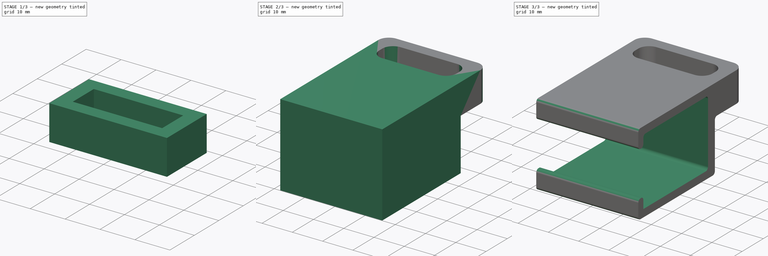
[diagram: build sequence overview — one tinted view per stage of 3, left to right]
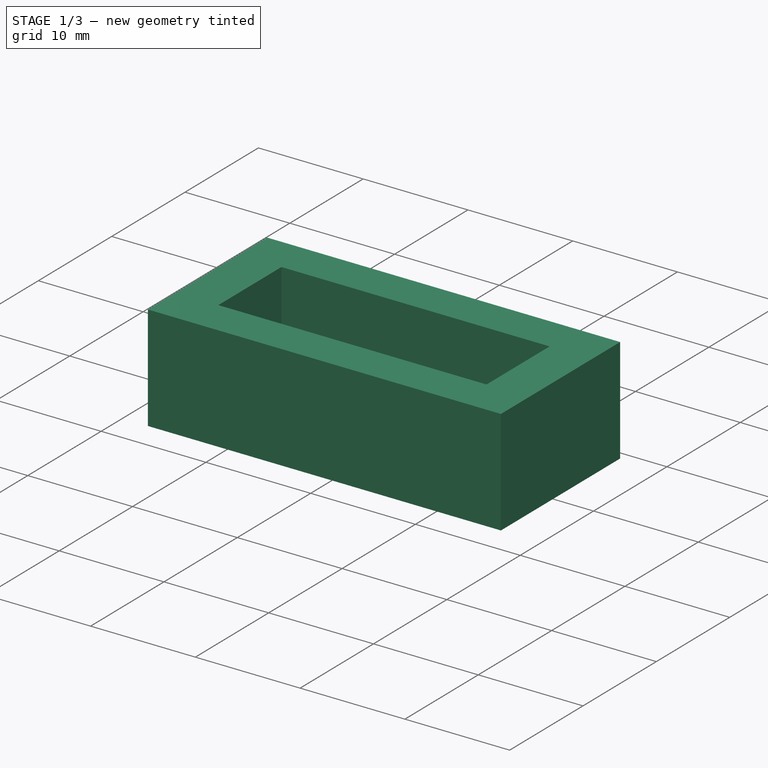
[diagram: stage 1 of 3 — iso view after this stage's code; geometry added in this stage tinted green]
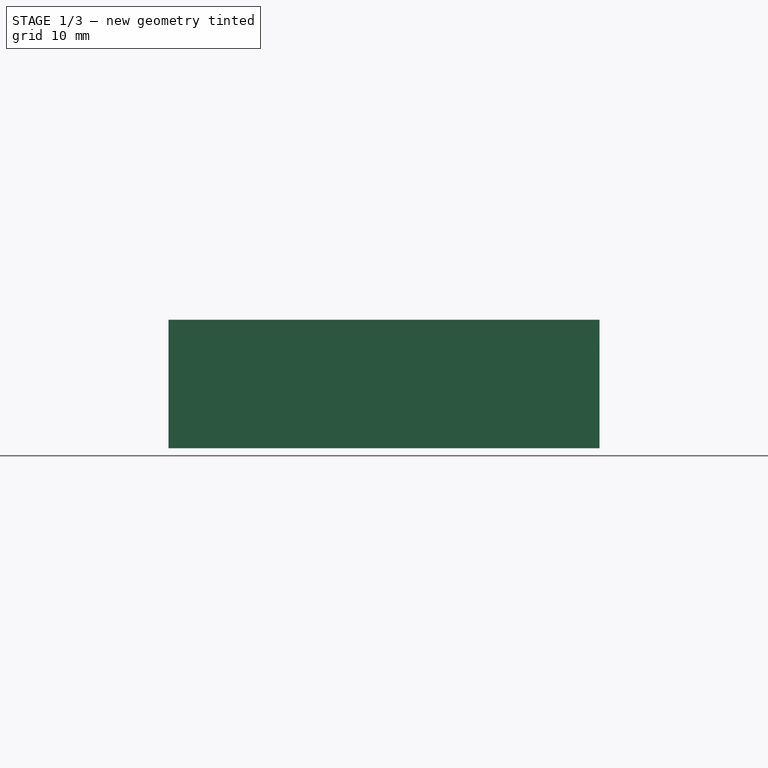
[diagram: stage 1 of 3 — front view after this stage's code; geometry added in this stage tinted green]
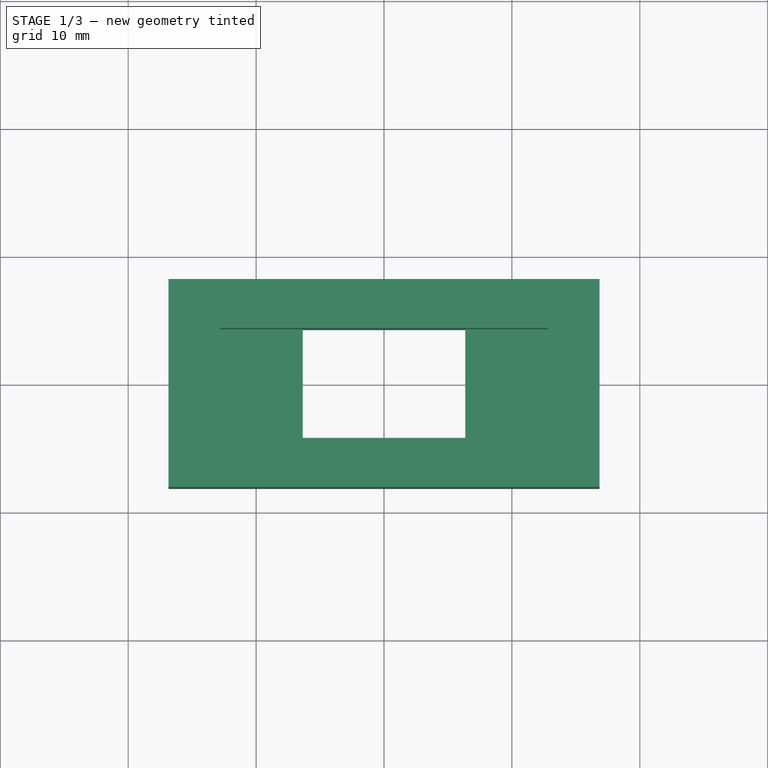
[diagram: stage 1 of 3 — top view after this stage's code; geometry added in this stage tinted green]
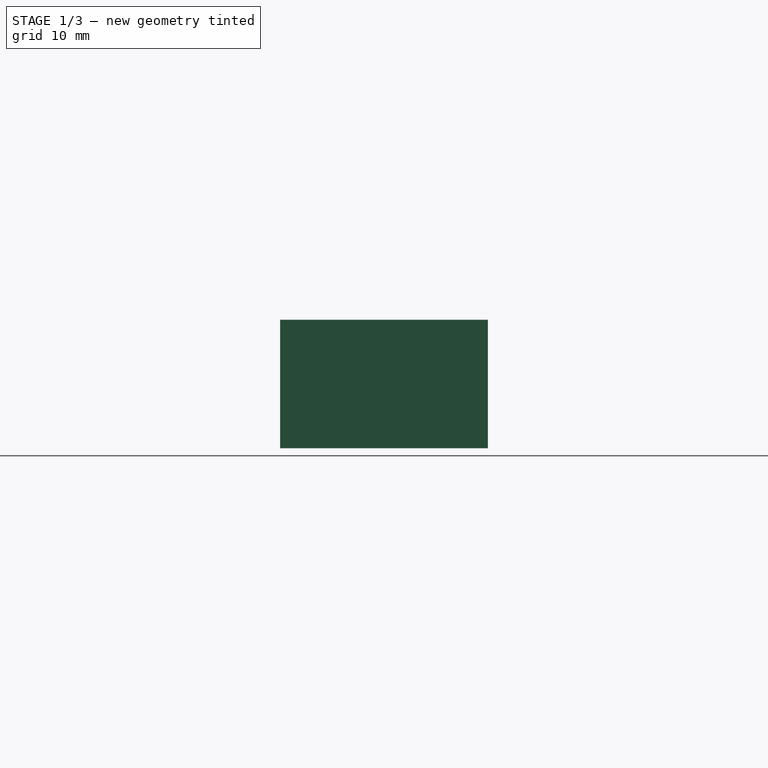
[diagram: stage 1 of 3 — right view after this stage's code; geometry added in this stage tinted green]
FCSTD DOCUMENT  (FreeCAD 1.0R39104 (Git))
Label: USB-C Mount
License: All rights reserved
LicenseURL: http://en.wikipedia.org/wiki/All_rights_reserved
objects: Sketcher::SketchObject×5, PartDesign::Pad×3, PartDesign::Fillet×2, PartDesign::Pocket×2, PartDesign::Body×1
note: 32 computed .brp shape members not serialized (recipe doc carries the construction recipe); baked Part::Feature solids carry a one-line shape summary decoded from their .brp

FEATURE [Sketcher::SketchObject] Sketch
  ArcFitTolerance = 1e-06
  AttachmentSupport = -> [XY_Plane]
  FullyConstrained = true
  MakeInternals = false
  MapMode = 5
  sketch-geometry (10):
    g0: LineSegment StartX=-6.35 StartY=-4.3 StartZ=0 EndX=6.35 EndY=-4.3 EndZ=0
    g1: LineSegment StartX=6.35 StartY=-4.3 StartZ=0 EndX=6.35 EndY=4.3 EndZ=0
    g2: LineSegment StartX=6.35 StartY=4.3 StartZ=0 EndX=-6.35 EndY=4.3 EndZ=0
    g3: LineSegment StartX=-6.35 StartY=4.3 StartZ=0 EndX=-6.35 EndY=-4.3 EndZ=0
    g4: GeomPoint [constr] X=0 Y=0 Z=0
    g5: LineSegment StartX=-16.85 StartY=-8.125 StartZ=0 EndX=16.85 EndY=-8.125 EndZ=0
    g6: LineSegment StartX=16.85 StartY=-8.125 StartZ=0 EndX=16.85 EndY=8.125 EndZ=0
    g7: LineSegment StartX=16.85 StartY=8.125 StartZ=0 EndX=-16.85 EndY=8.125 EndZ=0
    g8: LineSegment StartX=-16.85 StartY=8.125 StartZ=0 EndX=-16.85 EndY=-8.125 EndZ=0
    g9: GeomPoint [constr] X=0 Y=0 Z=0
  constraints (24):
    c: Coincident(g0,g1)
    c: Coincident(g1,g2)
    c: Coincident(g2,g3)
    c: Coincident(g3,g0)
    c: Horizontal(g0)
    c: Horizontal(g2)
    c: Vertical(g1)
    c: Vertical(g3)
    c: Symmetric(g2,g0,g4)
    c: Coincident(g4,g-1)
    c: Distance(g2) = 12.7
    c: Distance(g1) = 8.6
    c: Coincident(g5,g6)
    c: Coincident(g6,g7)
    c: Coincident(g7,g8)
    c: Coincident(g8,g5)
    c: Horizontal(g5)
    c: Horizontal(g7)
    c: Vertical(g6)
    c: Vertical(g8)
    c: Symmetric(g7,g5,g9)
    c: Coincident(g9,g4)
    c: Distance(g7) = 33.7
    c: Distance(g6) = 16.25
FEATURE [PartDesign::Pad] Pad
  Direction = (0,0,1)
  Length = 3.75
  Length2 = 10
  Profile = -> Sketch
  ReferenceAxis = -> Sketch [N_Axis]
  Refine = true
  Suppressed = false
  Type = 0
FEATURE [Sketcher::SketchObject] Sketch001
  ArcFitTolerance = 1e-06
  AttachmentSupport = -> [Pad]
  ExternalGeometry = -> [Pad]
  FullyConstrained = true
  MakeInternals = false
  MapMode = 5
  Placement = pos=(0,0,3.75) rot=(0,0,1;0rad)
  sketch-geometry (10):
    g0: LineSegment StartX=-16.85 StartY=-8.125 StartZ=0 EndX=16.85 EndY=-8.125 EndZ=0
    g1: LineSegment StartX=16.85 StartY=-8.125 StartZ=0 EndX=16.85 EndY=8.125 EndZ=0
    g2: LineSegment StartX=16.85 StartY=8.125 StartZ=0 EndX=-16.85 EndY=8.125 EndZ=0
    g3: LineSegment StartX=-16.85 StartY=8.125 StartZ=0 EndX=-16.85 EndY=-8.125 EndZ=0
    g4: GeomPoint [constr] X=0 Y=0 Z=0
    g5: LineSegment StartX=-12.8 StartY=-4.3 StartZ=0 EndX=12.8 EndY=-4.3 EndZ=0
    g6: LineSegment StartX=12.8 StartY=-4.3 StartZ=0 EndX=12.8 EndY=4.3 EndZ=0
    g7: LineSegment StartX=12.8 StartY=4.3 StartZ=0 EndX=-12.8 EndY=4.3 EndZ=0
    g8: LineSegment StartX=-12.8 StartY=4.3 StartZ=0 EndX=-12.8 EndY=-4.3 EndZ=0
    g9: GeomPoint [constr] X=0 Y=0 Z=0
  constraints (23):
    c: Coincident(g0,g1)
    c: Coincident(g1,g2)
    c: Coincident(g2,g3)
    c: Coincident(g3,g0)
    c: Horizontal(g0)
    c: Horizontal(g2)
    c: Vertical(g1)
    c: Vertical(g3)
    c: Symmetric(g2,g0,g4)
    c: Coincident(g4,g-1)
    c: Coincident(g1,g-3)
    c: Coincident(g5,g6)
    c: Coincident(g6,g7)
    c: Coincident(g7,g8)
    c: Coincident(g8,g5)
    c: Horizontal(g5)
    c: Horizontal(g7)
    c: Vertical(g6)
    c: Vertical(g8)
    c: Symmetric(g7,g5,g9)
    c: Coincident(g9,g4)
    c: PointOnObject(g-5,g7)
    c: Distance(g7) = 25.6
FEATURE [PartDesign::Pad] Pad001
  BaseFeature = -> Pad
  Direction = (0,0,1)
  Length = 6.3
  Length2 = 10
  Profile = -> Sketch001
  ReferenceAxis = -> Sketch001 [N_Axis]
  Refine = true
  Suppressed = false
  Type = 0
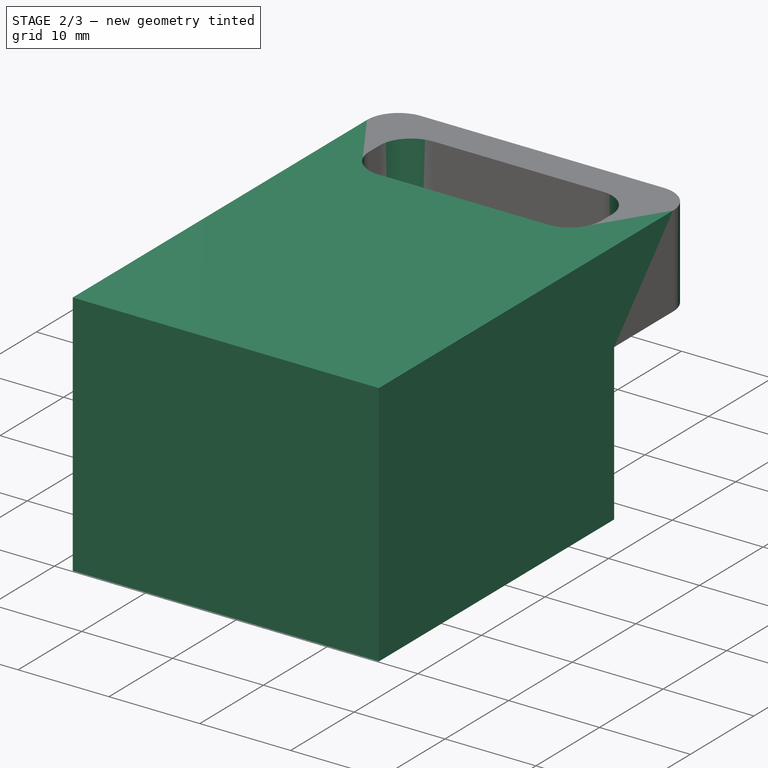
[diagram: stage 2 of 3 — iso view after this stage's code; geometry added in this stage tinted green]
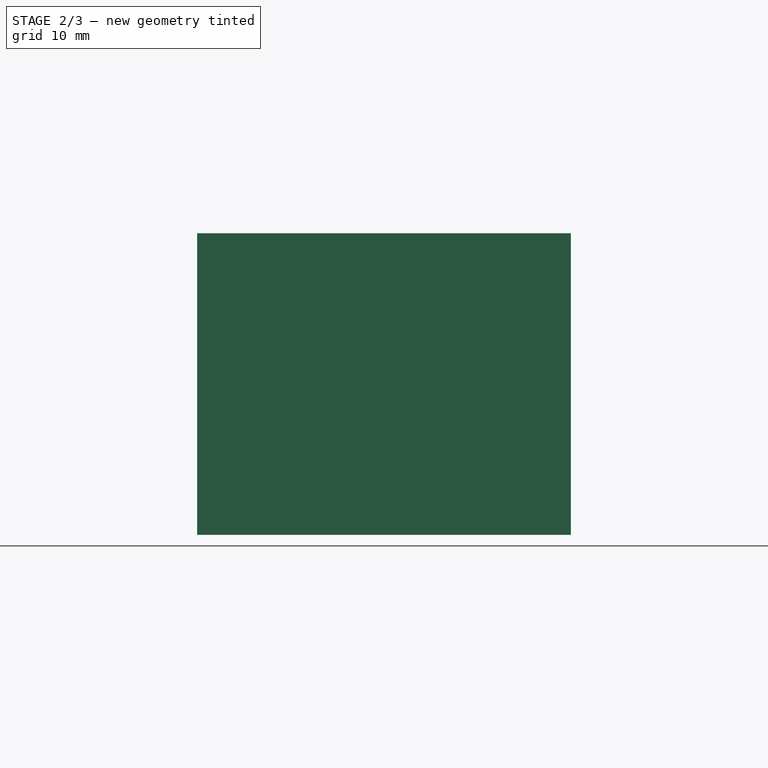
[diagram: stage 2 of 3 — front view after this stage's code; geometry added in this stage tinted green]
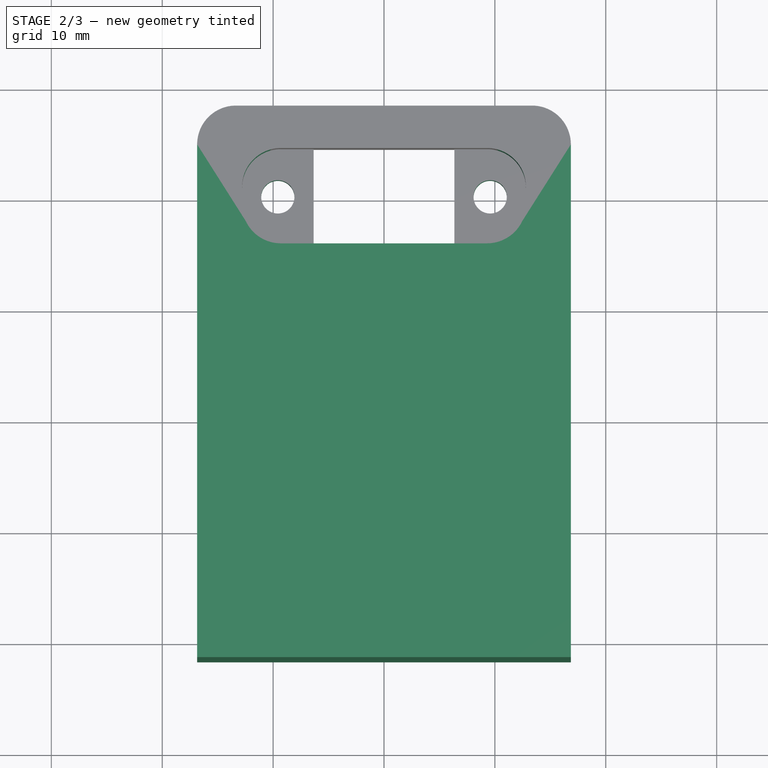
[diagram: stage 2 of 3 — top view after this stage's code; geometry added in this stage tinted green]
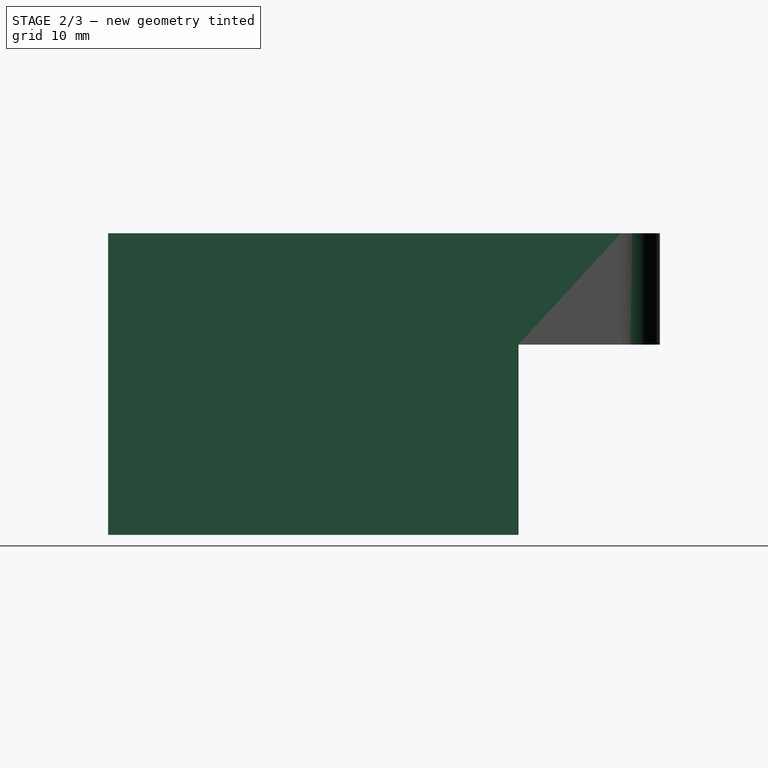
[diagram: stage 2 of 3 — right view after this stage's code; geometry added in this stage tinted green]
FEATURE [PartDesign::Fillet] Fillet
  Base = -> Pad001 [Edge31,Edge22,Edge21,Edge32,Edge34,Edge35,Edge33,Edge36]
  BaseFeature = -> Pad001
  Radius = 3.5
  Refine = true
  SupportTransform = false
  Suppressed = false
  UseAllEdges = false
FEATURE [Sketcher::SketchObject] Sketch002
  ArcFitTolerance = 1e-06
  AttachmentSupport = -> [Fillet]
  ExternalGeometry = -> [Fillet]
  FullyConstrained = true
  MakeInternals = false
  MapMode = 5
  Placement = pos=(0,0,3.75) rot=(0,0,1;0rad)
  sketch-geometry (4):
    g0: LineSegment [constr] StartX=-12.8 StartY=0 StartZ=0 EndX=-6.35 EndY=0 EndZ=0
    g1: LineSegment [constr] StartX=6.35 StartY=0 StartZ=0 EndX=12.8 EndY=0 EndZ=0
    g2: Circle CenterX=-9.575 CenterY=0 CenterZ=0 NormalX=0 NormalY=0 NormalZ=1 AngleXU=0 Radius=1.5
    g3: Circle CenterX=9.575 CenterY=0 CenterZ=0 NormalX=0 NormalY=0 NormalZ=1 AngleXU=0 Radius=1.5
  constraints (8):
    c: Symmetric(g-5,g-5,g0)
    c: Symmetric(g-4,g-4,g0)
    c: Symmetric(g-3,g-3,g1)
    c: Symmetric(g-6,g-6,g1)
    c: Symmetric(g0,g0,g2)
    c: Symmetric(g1,g1,g3)
    c: Equal(g2,g3)
    c: Diameter(g3) = 3
FEATURE [PartDesign::Pocket] Pocket
  BaseFeature = -> Fillet
  Direction = (0,0,-1)
  Length = 5
  Length2 = 5
  Profile = -> Sketch002
  ReferenceAxis = -> Sketch002 [N_Axis]
  Refine = true
  Suppressed = false
  Type = 1
FEATURE [Sketcher::SketchObject] Sketch003
  ArcFitTolerance = 1e-06
  AttachmentSupport = -> [Pocket]
  ExternalGeometry = -> [Pocket]
  FullyConstrained = true
  MakeInternals = false
  MapMode = 5
  Placement = pos=(0,0,10.05) rot=(0,0,1;0rad)
  sketch-geometry (12):
    g0: LineSegment StartX=-16.85 StartY=-41.625 StartZ=0 EndX=16.85 EndY=-41.625 EndZ=0
    g1: LineSegment [constr] StartX=16.85 StartY=-41.625 StartZ=0 EndX=16.85 EndY=-8.125 EndZ=0
    g2: LineSegment [constr] StartX=13.35 StartY=-8.125 StartZ=0 EndX=16.85 EndY=-8.125 EndZ=0
    g3: LineSegment StartX=16.85 StartY=-5.5 StartZ=0 EndX=16.85 EndY=-41.625 EndZ=0
    g4: LineSegment StartX=-16.85 StartY=-5.5 StartZ=0 EndX=-16.85 EndY=-41.625 EndZ=0
    g5: LineSegment [constr] StartX=-16.85 StartY=-5.5 StartZ=0 EndX=16.85 EndY=-5.5 EndZ=0
    g6: LineSegment [constr] StartX=-9.3 StartY=-4.3 StartZ=0 EndX=-9.3 EndY=-5.5 EndZ=0
    g7: LineSegment StartX=-16.85 StartY=-4.625 StartZ=0 EndX=-16.85 EndY=-5.5 EndZ=0
    g8: LineSegment StartX=16.85 StartY=-4.625 StartZ=0 EndX=16.85 EndY=-5.5 EndZ=0
    g9: ArcOfCircle CenterX=-13.35 CenterY=-4.625 CenterZ=0 NormalX=0 NormalY=0 NormalZ=1 AngleXU=0 Radius=3.5 StartAngle=3.14159 EndAngle=3.39427
    g10: ArcOfCircle CenterX=13.35 CenterY=-4.625 CenterZ=0 NormalX=0 NormalY=0 NormalZ=1 AngleXU=0 Radius=3.5 StartAngle=6.03051 EndAngle=6.28319
    g11: LineSegment StartX=16.7389 StartY=-5.5 StartZ=0 EndX=-16.7389 EndY=-5.5 EndZ=0
  constraints (32):
    c: Horizontal(g0)
    c: Coincident(g1,g0)
    c: Vertical(g1)
    c: Distance(g1) = 33.5
    c: Coincident(g2,g-5)
    c: Horizontal(g2)
    c: Coincident(g2,g1)
    c: Coincident(g3,g0)
    c: Vertical(g3)
    c: Coincident(g4,g0)
    c: Vertical(g4)
    c: Coincident(g6,g-6)
    c: PointOnObject(g6,g5)
    c: Vertical(g6)
    c: Coincident(g5,g3)
    c: Coincident(g5,g4)
    c: Coincident(g7,g-3)
    c: Coincident(g7,g4)
    c: Vertical(g7)
    c: Coincident(g8,g-4)
    c: Coincident(g8,g3)
    c: Vertical(g8)
    c: Distance(g6) = 1.2
    c: Horizontal(g5)
    c: PointOnObject(g9,g5)
    c: Tangent(g9,g7) = -1.5708
    c: PointOnObject(g9,g-7)
    c: Coincident(g10,g8)
    c: PointOnObject(g10,g5)
    c: Tangent(g10,g-8) = -1.5708
    c: Coincident(g11,g10)
    c: Coincident(g11,g9)
FEATURE [PartDesign::Pad] Pad002
  BaseFeature = -> Pocket
  Direction = (0,0,1)
  Length = 27.2
  Length2 = 10
  Profile = -> Sketch003
  ReferenceAxis = -> Sketch003 [N_Axis]
  Refine = true
  Reversed = true
  Suppressed = false
  Type = 0
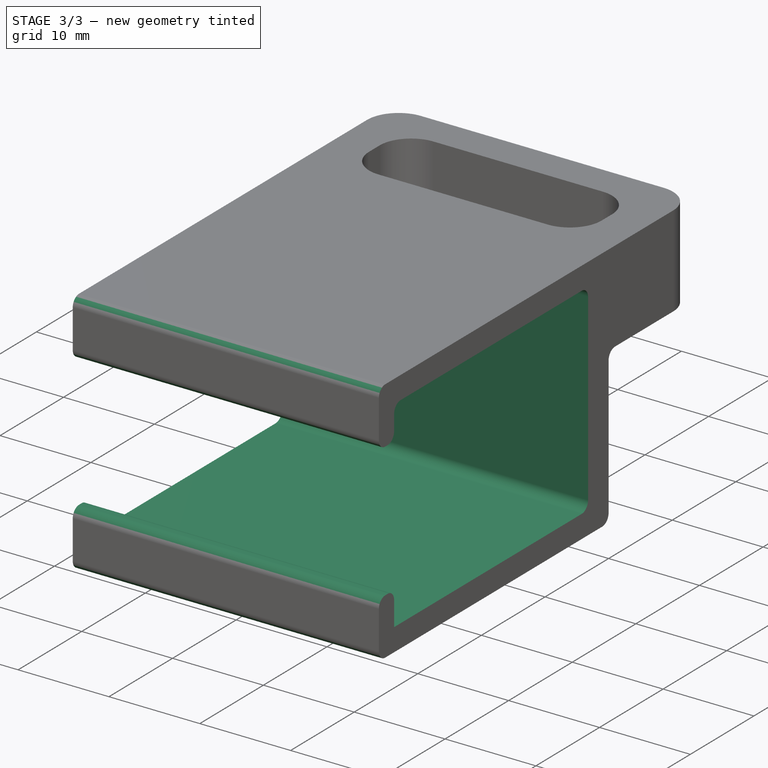
[diagram: stage 3 of 3 — iso view after this stage's code; geometry added in this stage tinted green]
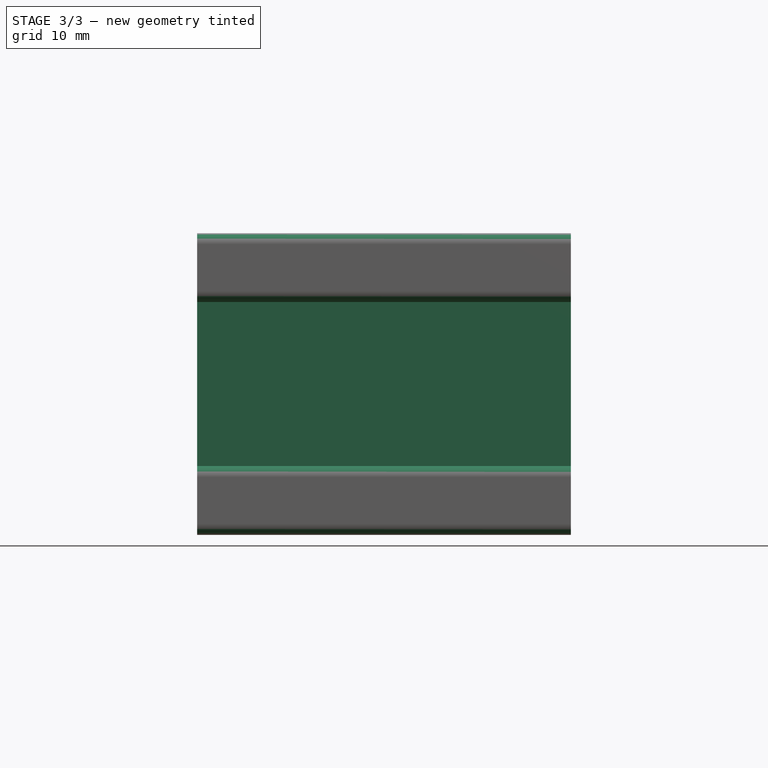
[diagram: stage 3 of 3 — front view after this stage's code; geometry added in this stage tinted green]
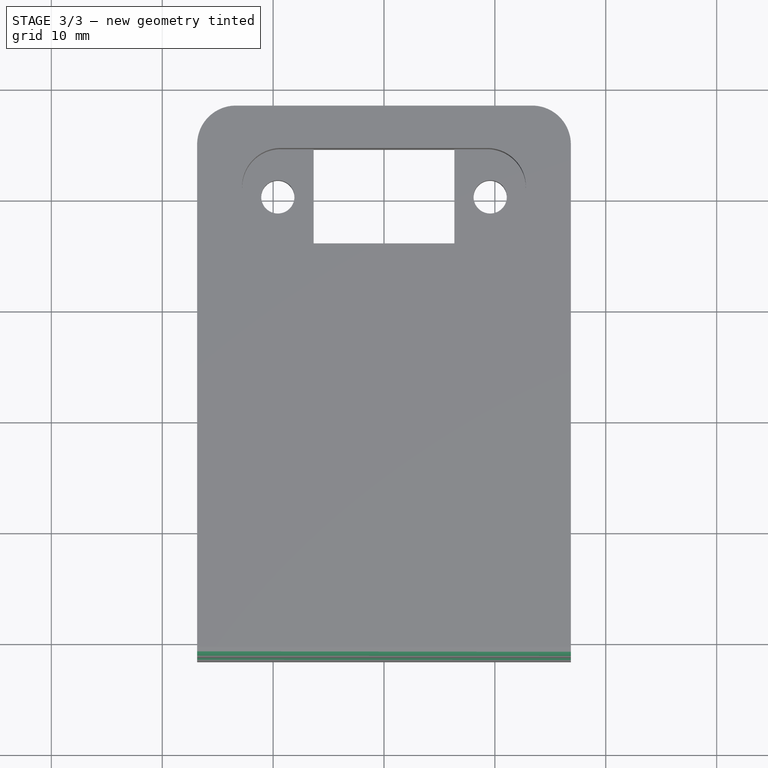
[diagram: stage 3 of 3 — top view after this stage's code; geometry added in this stage tinted green]
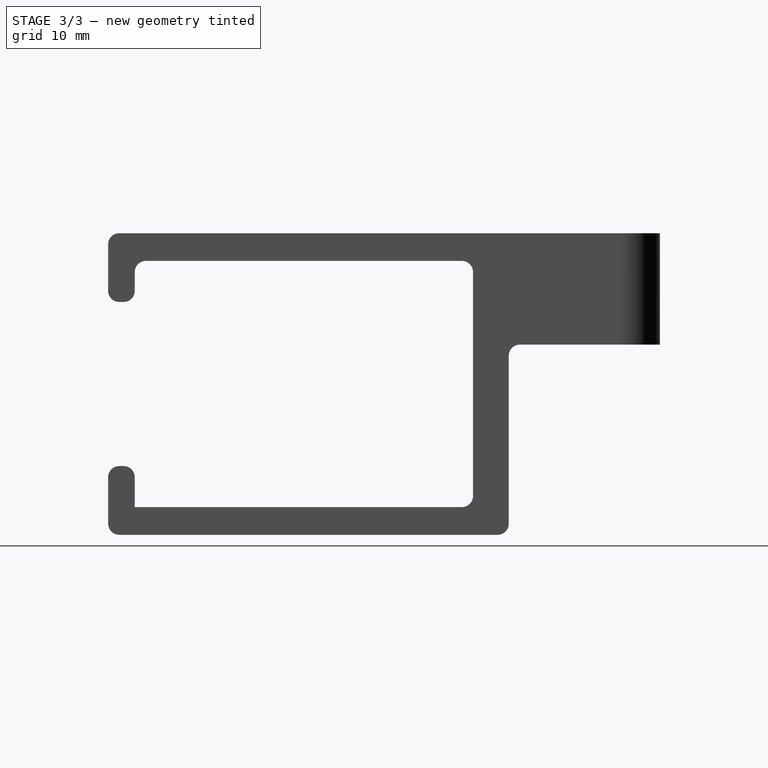
[diagram: stage 3 of 3 — right view after this stage's code; geometry added in this stage tinted green]
FEATURE [Sketcher::SketchObject] Sketch004
  ArcFitTolerance = 1e-06
  AttachmentSupport = -> [Pad002]
  ExternalGeometry = -> [Pad002]
  FullyConstrained = true
  MakeInternals = false
  MapMode = 5
  Placement = pos=(16.85,0,0) rot=(0.57735,0.57735,0.57735;2.0944rad)
  sketch-geometry (18):
    g0: LineSegment [constr] StartX=-41.625 StartY=10.05 StartZ=0 EndX=-41.625 EndY=3.85 EndZ=0
    g1: LineSegment StartX=-41.625 StartY=3.85 StartZ=0 EndX=-39.225 EndY=3.85 EndZ=0
    g2: LineSegment StartX=-39.225 StartY=3.85 StartZ=0 EndX=-39.225 EndY=7.55 EndZ=0
    g3: LineSegment StartX=-39.225 StartY=7.55 StartZ=0 EndX=-8.725 EndY=7.55 EndZ=0
    g4: LineSegment StartX=-8.725 StartY=7.55 StartZ=0 EndX=-8.725 EndY=-14.65 EndZ=0
    g5: LineSegment StartX=-8.725 StartY=-14.65 StartZ=0 EndX=-39.225 EndY=-14.65 EndZ=0
    g6: LineSegment StartX=-39.225 StartY=-14.65 StartZ=0 EndX=-39.225 EndY=-10.95 EndZ=0
    g7: LineSegment StartX=-39.225 StartY=-10.95 StartZ=0 EndX=-41.625 EndY=-10.95 EndZ=0
    g8: LineSegment StartX=-41.625 StartY=-10.95 StartZ=0 EndX=-41.625 EndY=3.85 EndZ=0
    g9: LineSegment [constr] StartX=-39.225 StartY=3.85 StartZ=0 EndX=-39.225 EndY=-10.95 EndZ=0
    g10: LineSegment [constr] StartX=-39.225 StartY=7.55 StartZ=0 EndX=-39.225 EndY=10.05 EndZ=0
    g11: LineSegment [constr] StartX=-39.225 StartY=10.05 StartZ=0 EndX=-41.625 EndY=10.05 EndZ=0
    g12: LineSegment [constr] StartX=-41.625 StartY=-17.15 StartZ=0 EndX=-39.225 EndY=-17.15 EndZ=0
    g13: LineSegment [constr] StartX=-39.225 StartY=-17.15 StartZ=0 EndX=-39.225 EndY=-14.65 EndZ=0
    g14: LineSegment StartX=-5.5 StartY=-17.15 StartZ=0 EndX=-4.625 EndY=-17.15 EndZ=0
    g15: LineSegment StartX=-4.625 StartY=-17.15 StartZ=0 EndX=-4.625 EndY=0 EndZ=0
    g16: LineSegment StartX=-4.625 StartY=0 StartZ=0 EndX=-5.5 EndY=0 EndZ=0
    g17: LineSegment StartX=-5.5 StartY=0 StartZ=0 EndX=-5.5 EndY=-17.15 EndZ=0
  constraints (48):
    c: Coincident(g0,g-3)
    c: PointOnObject(g0,g-3)
    c: Coincident(g1,g0)
    c: Horizontal(g1)
    c: Coincident(g2,g1)
    c: Vertical(g2)
    c: Coincident(g3,g2)
    c: Horizontal(g3)
    c: Coincident(g4,g3)
    c: Vertical(g4)
    c: Coincident(g5,g4)
    c: Horizontal(g5)
    c: Coincident(g6,g5)
    c: Vertical(g6)
    c: Coincident(g7,g6)
    c: PointOnObject(g7,g-3)
    c: Coincident(g8,g7)
    c: Coincident(g8,g0)
    c: Horizontal(g7)
    c: Coincident(g9,g1)
    c: Coincident(g9,g6)
    c: Vertical(g9)
    c: Distance(g0) = 6.2
    c: Distance(g1) = 2.4
    c: Coincident(g10,g2)
    c: Vertical(g10)
    c: Coincident(g11,g10)
    c: Coincident(g11,g0)
    c: Horizontal(g11)
    c: Distance(g10) = 2.5
    c: Distance(g3) = 30.5
    c: Coincident(g12,g-3)
    c: Horizontal(g12)
    c: Coincident(g13,g12)
    c: Coincident(g13,g5)
    c: Vertical(g13)
    c: Equal(g13,g10)
    c: Equal(g2,g6)
    c: Coincident(g14,g15)
    c: Coincident(g15,g16)
    c: Coincident(g16,g17)
    c: Coincident(g17,g14)
    c: Horizontal(g14)
    c: Horizontal(g16)
    c: Vertical(g15)
    c: Vertical(g17)
    c: Coincident(g14,g-5)
    c: Coincident(g15,g-4)
FEATURE [PartDesign::Pocket] Pocket001
  BaseFeature = -> Pad002
  Direction = (-1,0,0)
  Length = 5
  Length2 = 5
  Profile = -> Sketch004
  ReferenceAxis = -> Sketch004 [N_Axis]
  Refine = true
  Suppressed = false
  Type = 1
FEATURE [PartDesign::Fillet] Fillet001
  Base = -> Pocket001 [Edge78,Edge79,Edge72,Edge77,Edge1,Edge73,Edge74,Edge3,Edge30,Edge75,Edge90]
  BaseFeature = -> Pocket001
  Radius = 1
  Refine = true
  SupportTransform = false
  Suppressed = false
  UseAllEdges = false
FEATURE [PartDesign::Body] Body  label="USB-C Mount"
  AllowCompound = false
  Group = -> [Sketch,Pad,Sketch001,Pad001,Fillet,Sketch002,Pocket,Sketch003,Pad002,Sketch004,Pocket001,Fillet001]
  Origin = -> Origin
  Tip = -> Fillet001
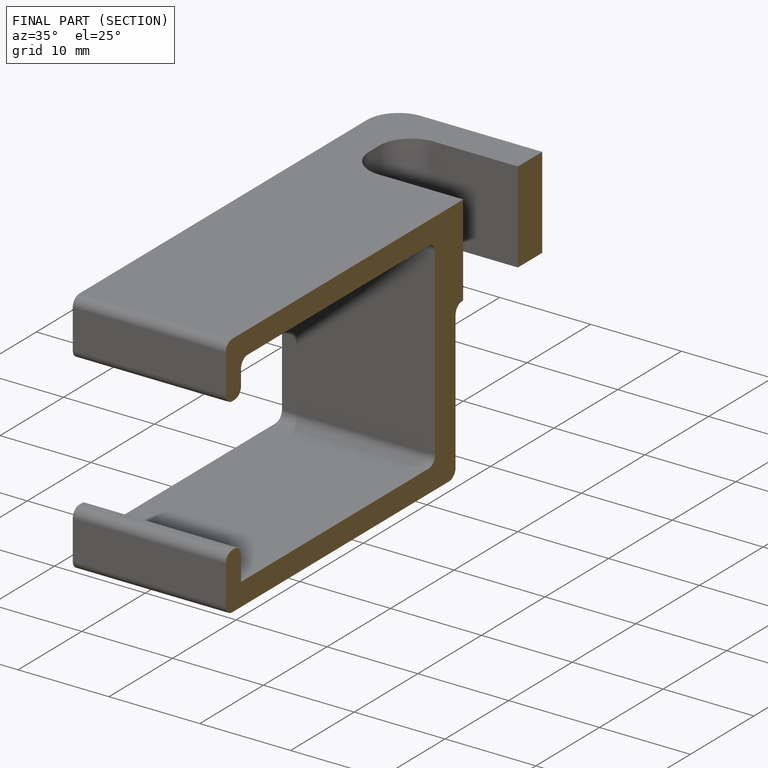
[diagram: finished part — half-section view (interior)]
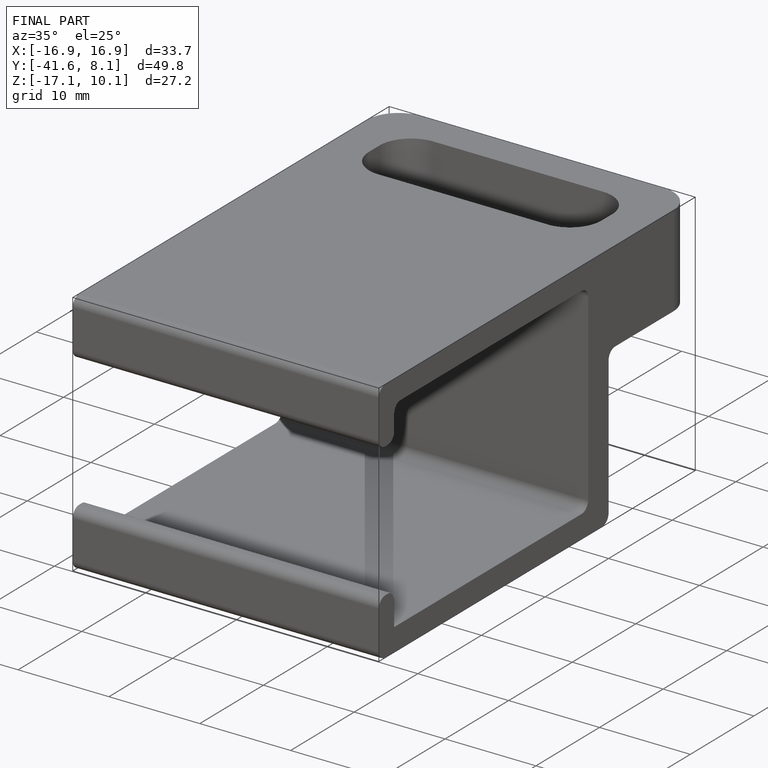
[diagram: finished part — iso view with bounding-box wireframe]
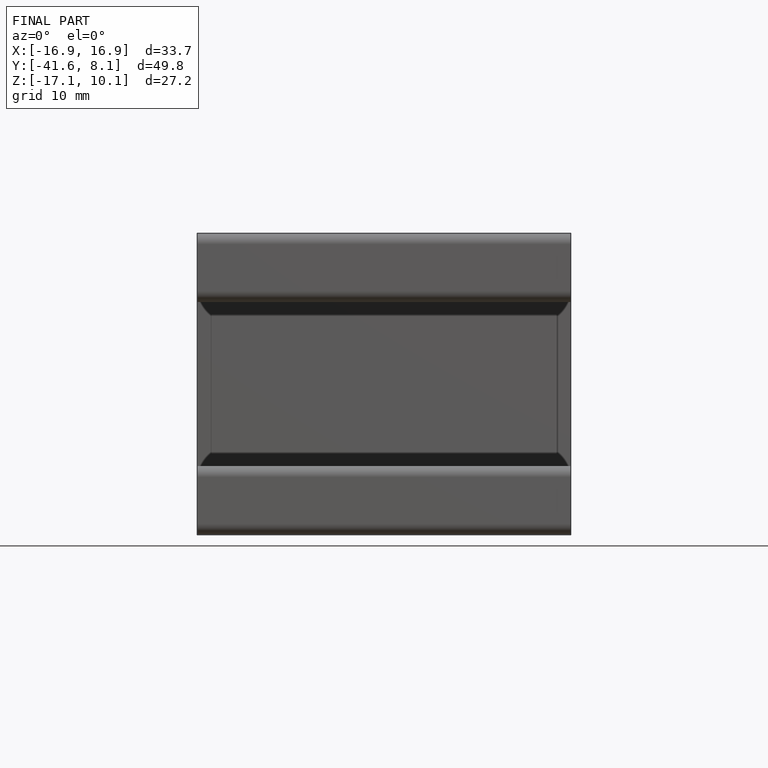
[diagram: finished part — front view with bounding-box wireframe]
